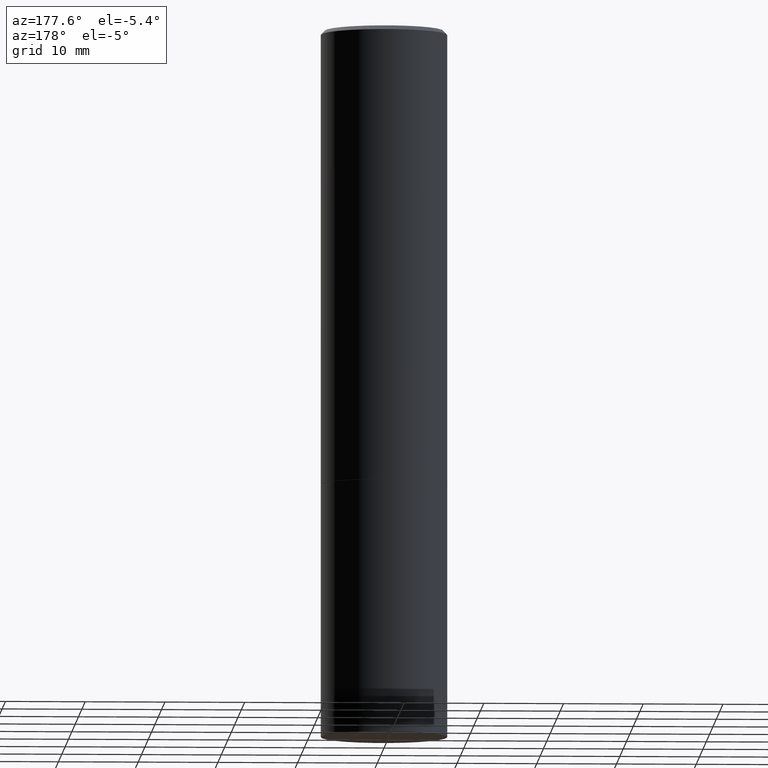
[diagram: clean part render]
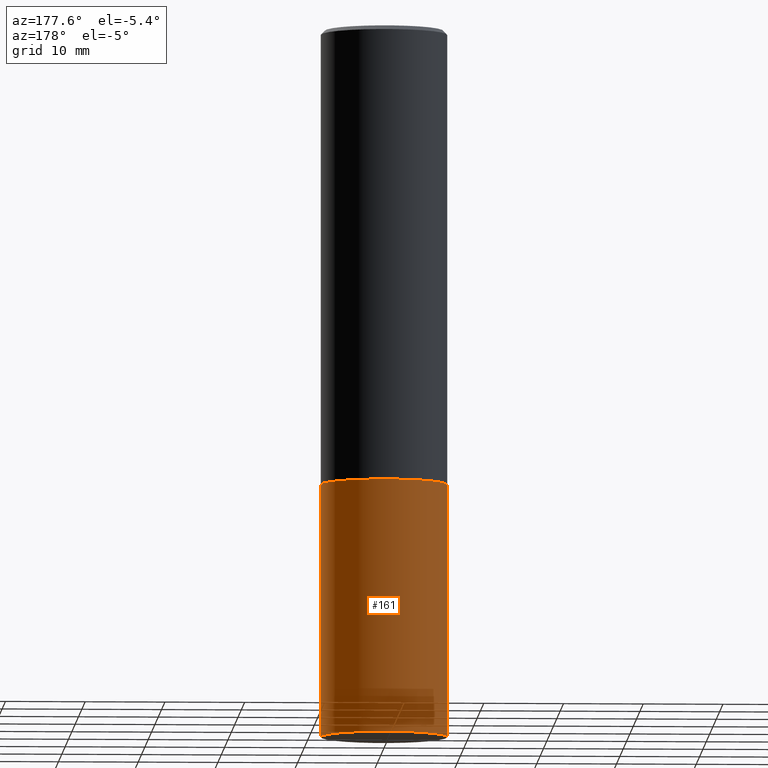
[diagram: same view with one face highlighted and labeled with its STEP entity id]
A machine part, auxiliary view. The second image highlights one B-rep face of the part: STEP entity #161.
In plain terms, the highlighted cylindrical surface (partial cylindrical patch) has radius 7.9375 mm, axis along (-0, 0, 1).
Its self-contained STEP definition (entity closure, byte-faithful):
#2 = EDGE_CURVE ( 'NONE', #308, #19, #156, .T. ) ;
#3 = ORIENTED_EDGE ( 'NONE', *, *, #389, .F. ) ;
#9 = CARTESIAN_POINT ( 'NONE',  ( 5.502304813916556222E-29, -7.855833012397075293E-15, -2.249999999999999556 ) ) ;
#19 = VERTEX_POINT ( 'NONE', #365 ) ;
#23 = DIRECTION ( 'NONE',  ( -2.445468806185136597E-29, 3.491481338843145583E-15, 1.000000000000000000 ) ) ;
#35 = AXIS2_PLACEMENT_3D ( 'NONE', #9, #248, #212 ) ;
#50 = VECTOR ( 'NONE', #302, 39.37007874015748143 ) ;
#56 = ORIENTED_EDGE ( 'NONE', *, *, #328, .T. ) ;
#67 = DIRECTION ( 'NONE',  ( -2.445468806185136877E-29, 3.491481338843145188E-15, 1.000000000000000000 ) ) ;
#68 = AXIS2_PLACEMENT_3D ( 'NONE', #81, #325, #171 ) ;
#70 = LINE ( 'NONE', #256, #97 ) ;
#75 = CARTESIAN_POINT ( 'NONE',  ( 0.3125000000000000000, -2.182175836776958347E-15, 1.523805242436230075E-29 ) ) ;
#81 = CARTESIAN_POINT ( 'NONE',  ( 8.559140821647976968E-29, -1.222018468595100934E-14, -3.500000000000000000 ) ) ;
#97 = VECTOR ( 'NONE', #67, 39.37007874015748143 ) ;
#110 = ORIENTED_EDGE ( 'NONE', *, *, #2, .F. ) ;
#127 = CIRCLE ( 'NONE', #68, 0.3125000000000000000 ) ;
#147 = VERTEX_POINT ( 'NONE', #246 ) ;
#154 = CARTESIAN_POINT ( 'NONE',  ( 0.000000000000000000, 0.000000000000000000, 0.000000000000000000 ) ) ;
#156 = CIRCLE ( 'NONE', #35, 0.3125000000000000000 ) ;
#161 = ADVANCED_FACE ( 'NONE', ( #184 ), #363, .T. ) ;
#171 = DIRECTION ( 'NONE',  ( 1.000000000000000000, -6.982962677686269077E-15, 0.000000000000000000 ) ) ;
#184 = FACE_OUTER_BOUND ( 'NONE', #186, .T. ) ;
#186 = EDGE_LOOP ( 'NONE', ( #56, #225, #110, #3 ) ) ;
#212 = DIRECTION ( 'NONE',  ( 1.000000000000000000, -6.982962677686265133E-15, 0.000000000000000000 ) ) ;
#225 = ORIENTED_EDGE ( 'NONE', *, *, #226, .T. ) ;
#226 = EDGE_CURVE ( 'NONE', #147, #19, #70, .T. ) ;
#234 = VERTEX_POINT ( 'NONE', #264 ) ;
#246 = CARTESIAN_POINT ( 'NONE',  ( -0.3124999999999997224, -1.003800884917405415E-14, -3.500000000000000000 ) ) ;
#248 = DIRECTION ( 'NONE',  ( -2.445468806185136597E-29, 3.491481338843145583E-15, 1.000000000000000000 ) ) ;
#254 = DIRECTION ( 'NONE',  ( 1.000000000000000000, -6.982962677686266711E-15, 4.876176775795936353E-29 ) ) ;
#256 = CARTESIAN_POINT ( 'NONE',  ( -0.3125000000000000000, 2.220446049250313081E-15, -1.537167215704658232E-29 ) ) ;
#264 = CARTESIAN_POINT ( 'NONE',  ( 0.3124999999999997224, -1.436409031025461138E-14, -3.500000000000000000 ) ) ;
#302 = DIRECTION ( 'NONE',  ( -2.445468806185136877E-29, 3.491481338843145188E-15, 1.000000000000000000 ) ) ;
#308 = VERTEX_POINT ( 'NONE', #342 ) ;
#325 = DIRECTION ( 'NONE',  ( -2.445468806185136597E-29, 3.491481338843145583E-15, 1.000000000000000000 ) ) ;
#326 = LINE ( 'NONE', #75, #50 ) ;
#328 = EDGE_CURVE ( 'NONE', #234, #147, #127, .T. ) ;
#342 = CARTESIAN_POINT ( 'NONE',  ( 0.3125000000000000000, -1.003800884917403364E-14, -2.249999999999999556 ) ) ;
#363 = CYLINDRICAL_SURFACE ( 'NONE', #366, 0.3125000000000000000 ) ;
#365 = CARTESIAN_POINT ( 'NONE',  ( -0.3125000000000000000, -7.817562799923728448E-15, -2.249999999999999556 ) ) ;
#366 = AXIS2_PLACEMENT_3D ( 'NONE', #154, #23, #254 ) ;
#389 = EDGE_CURVE ( 'NONE', #234, #308, #326, .T. ) ;